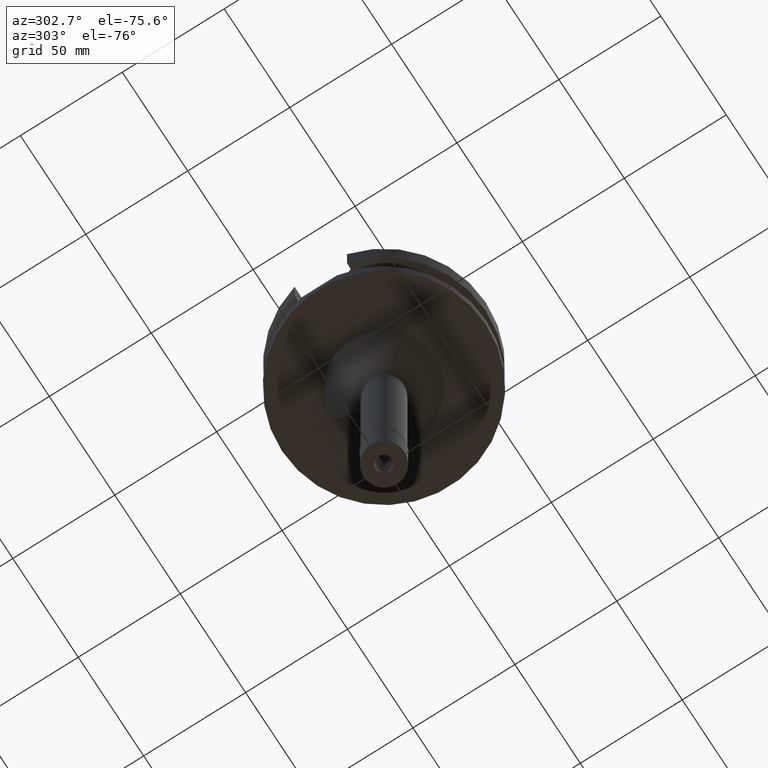
[diagram: clean part render]
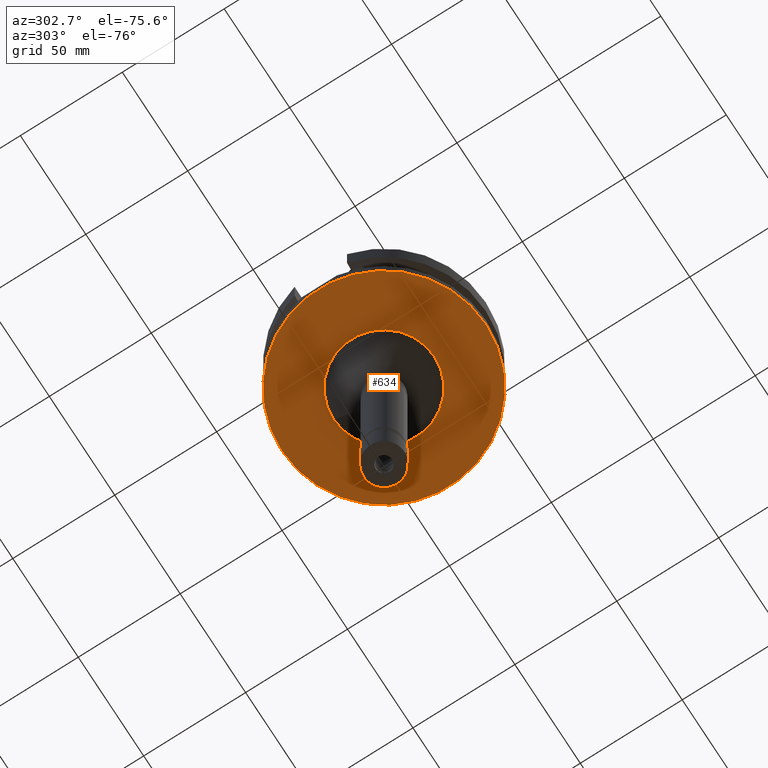
[diagram: same view with one face highlighted and labeled with its STEP entity id]
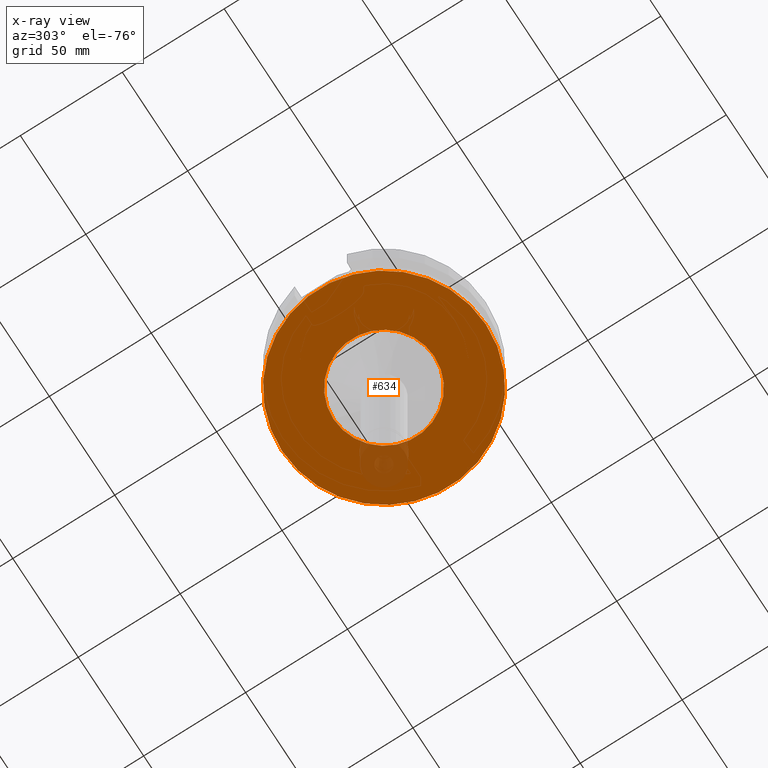
[diagram: x-ray of the same camera — body ghosted, the highlighted face saturated]
A machine part, auxiliary view. The second image highlights one B-rep face of the part: STEP entity #634.
The next image is the same camera in x-ray: the body ghosted, the highlighted face saturated — about 6% of this face is hidden behind the body in this view.
In plain terms, the highlighted planar face has unit normal (0, 0, -1).
Its self-contained STEP definition (entity closure, byte-faithful):
#176 = DIRECTION ( 'NONE',  ( 0.0000000000000000000, 0.0000000000000000000, 1.000000000000000000 ) ) ;
#195 = CARTESIAN_POINT ( 'NONE',  ( 0.0000000000000000000, -50.00000000000000000, -38.00000000000000000 ) ) ;
#257 = VERTEX_POINT ( 'NONE', #195 ) ;
#308 = DIRECTION ( 'NONE',  ( 0.0000000000000000000, 1.000000000000000000, 0.0000000000000000000 ) ) ;
#363 = DIRECTION ( 'NONE',  ( 0.0000000000000000000, 0.0000000000000000000, -1.000000000000000000 ) ) ;
#541 = AXIS2_PLACEMENT_3D ( 'NONE', #620, #363, #2319 ) ;
#606 = FACE_BOUND ( 'NONE', #1723, .T. ) ;
#620 = CARTESIAN_POINT ( 'NONE',  ( 0.0000000000000000000, 0.0000000000000000000, -38.00000000000000000 ) ) ;
#634 = ADVANCED_FACE ( 'NONE', ( #2792, #606 ), #1574, .T. ) ;
#651 = CARTESIAN_POINT ( 'NONE',  ( 0.0000000000000000000, -24.75000000000000000, -38.00000000000000000 ) ) ;
#693 = EDGE_CURVE ( 'NONE', #2696, #257, #795, .T. ) ;
#772 = CARTESIAN_POINT ( 'NONE',  ( 0.0000000000000000000, 0.0000000000000000000, -38.00000000000000000 ) ) ;
#795 = CIRCLE ( 'NONE', #2175, 50.00000000000000000 ) ;
#834 = CARTESIAN_POINT ( 'NONE',  ( 0.0000000000000000000, 50.00000000000000000, -38.00000000000000000 ) ) ;
#895 = CIRCLE ( 'NONE', #1299, 24.75000000000000000 ) ;
#903 = DIRECTION ( 'NONE',  ( 0.0000000000000000000, 0.0000000000000000000, -1.000000000000000000 ) ) ;
#1095 = CIRCLE ( 'NONE', #1961, 24.75000000000000000 ) ;
#1117 = EDGE_CURVE ( 'NONE', #1131, #2055, #895, .T. ) ;
#1131 = VERTEX_POINT ( 'NONE', #1739 ) ;
#1299 = AXIS2_PLACEMENT_3D ( 'NONE', #772, #1503, #308 ) ;
#1378 = CARTESIAN_POINT ( 'NONE',  ( 0.0000000000000000000, 2.629806536488999751E-14, -38.00000000000000000 ) ) ;
#1503 = DIRECTION ( 'NONE',  ( 0.0000000000000000000, 0.0000000000000000000, -1.000000000000000000 ) ) ;
#1529 = ORIENTED_EDGE ( 'NONE', *, *, #1117, .F. ) ;
#1574 = PLANE ( 'NONE',  #541 ) ;
#1601 = DIRECTION ( 'NONE',  ( 0.0000000000000000000, -1.000000000000000000, 0.0000000000000000000 ) ) ;
#1638 = EDGE_CURVE ( 'NONE', #257, #2696, #2438, .T. ) ;
#1723 = EDGE_LOOP ( 'NONE', ( #1529, #2974 ) ) ;
#1739 = CARTESIAN_POINT ( 'NONE',  ( 0.0000000000000000000, 24.75000000000000000, -38.00000000000000000 ) ) ;
#1838 = EDGE_LOOP ( 'NONE', ( #1980, #2997 ) ) ;
#1883 = DIRECTION ( 'NONE',  ( 0.0000000000000000000, -1.000000000000000000, 0.0000000000000000000 ) ) ;
#1955 = EDGE_CURVE ( 'NONE', #2055, #1131, #1095, .T. ) ;
#1961 = AXIS2_PLACEMENT_3D ( 'NONE', #3050, #903, #1601 ) ;
#1980 = ORIENTED_EDGE ( 'NONE', *, *, #693, .F. ) ;
#2055 = VERTEX_POINT ( 'NONE', #651 ) ;
#2086 = CARTESIAN_POINT ( 'NONE',  ( 0.0000000000000000000, 2.629806536488999751E-14, -38.00000000000000000 ) ) ;
#2130 = DIRECTION ( 'NONE',  ( 0.0000000000000000000, 0.0000000000000000000, 1.000000000000000000 ) ) ;
#2175 = AXIS2_PLACEMENT_3D ( 'NONE', #2086, #2130, #3082 ) ;
#2319 = DIRECTION ( 'NONE',  ( 0.0000000000000000000, -1.000000000000000000, 0.0000000000000000000 ) ) ;
#2336 = AXIS2_PLACEMENT_3D ( 'NONE', #1378, #176, #1883 ) ;
#2438 = CIRCLE ( 'NONE', #2336, 50.00000000000000000 ) ;
#2696 = VERTEX_POINT ( 'NONE', #834 ) ;
#2792 = FACE_OUTER_BOUND ( 'NONE', #1838, .T. ) ;
#2974 = ORIENTED_EDGE ( 'NONE', *, *, #1955, .F. ) ;
#2997 = ORIENTED_EDGE ( 'NONE', *, *, #1638, .F. ) ;
#3050 = CARTESIAN_POINT ( 'NONE',  ( 0.0000000000000000000, 0.0000000000000000000, -38.00000000000000000 ) ) ;
#3082 = DIRECTION ( 'NONE',  ( 0.0000000000000000000, 1.000000000000000000, 0.0000000000000000000 ) ) ;